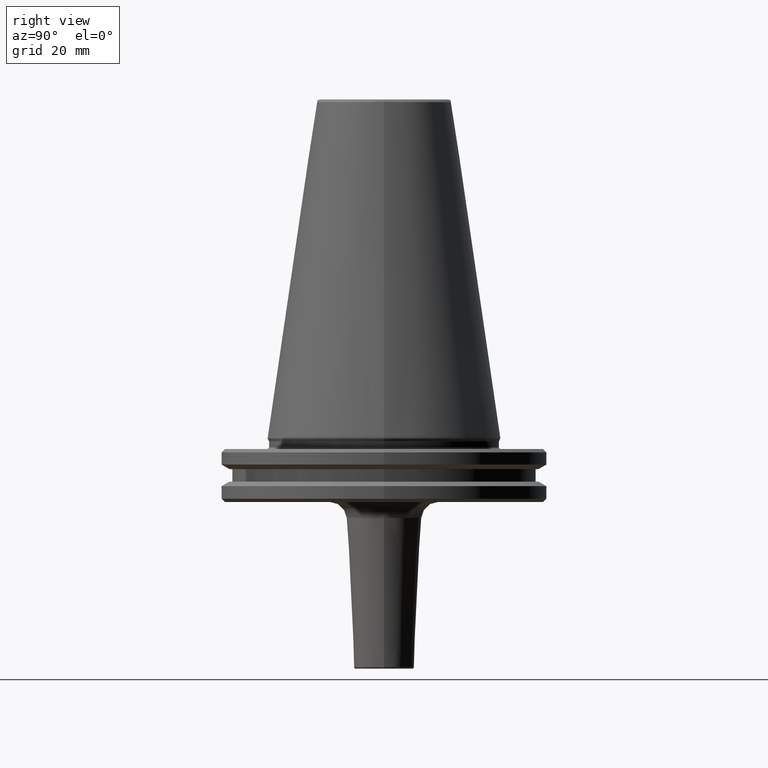
[diagram: clean part render]
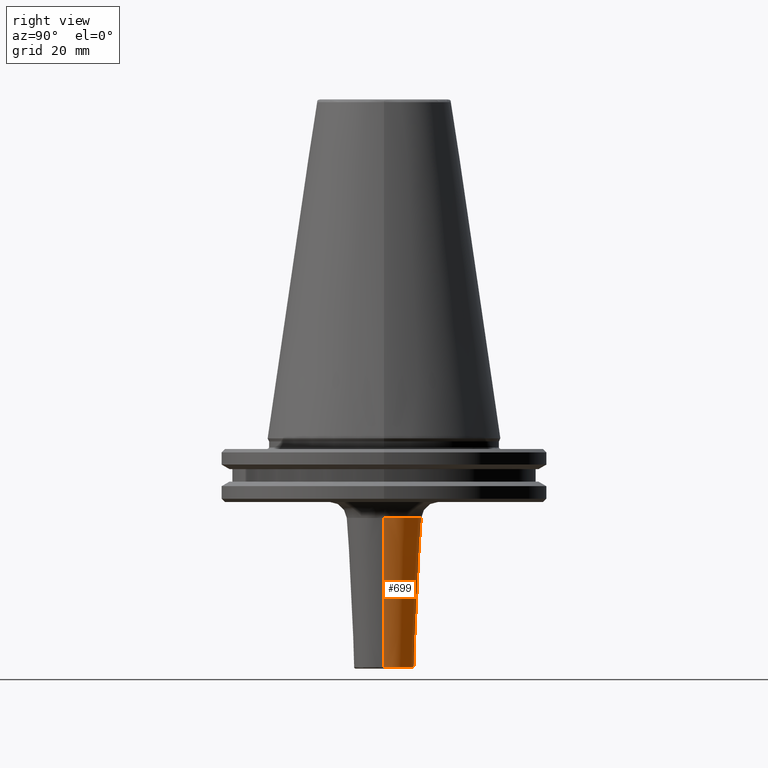
[diagram: same view with one face highlighted and labeled with its STEP entity id]
A machine part, right view. The second image highlights one B-rep face of the part: STEP entity #699.
In plain terms, the highlighted conical surface has half-angle 2.862 deg.
Its self-contained STEP definition (entity closure, byte-faithful):
#2 = CARTESIAN_POINT ( 'NONE',  ( 9.023751559576402000, 0.0000000000000000000, -68.62496880847193400 ) ) ;
#3 = DIRECTION ( 'NONE',  ( 0.0000000000000000000, 0.0000000000000000000, 1.000000000000000000 ) ) ;
#215 = DIRECTION ( 'NONE',  ( 0.04993761694389226700, 0.0000000000000000000, 0.9987523388778446500 ) ) ;
#257 = CARTESIAN_POINT ( 'NONE',  ( 11.26248440423597300, 0.0000000000000000000, -23.85031191528056000 ) ) ;
#266 = CARTESIAN_POINT ( 'NONE',  ( -11.26248440423597300, 1.379256547609456900E-015, -23.85031191528054600 ) ) ;
#357 = EDGE_LOOP ( 'NONE', ( #1462, #1004, #579, #907 ) ) ;
#409 = CARTESIAN_POINT ( 'NONE',  ( 11.26248440423597300, 0.0000000000000000000, -23.85031191528054600 ) ) ;
#442 = DIRECTION ( 'NONE',  ( 1.000000000000000000, 0.0000000000000000000, 0.0000000000000000000 ) ) ;
#450 = CARTESIAN_POINT ( 'NONE',  ( 0.0000000000000000000, 0.0000000000000000000, -23.85031191528056000 ) ) ;
#451 = CARTESIAN_POINT ( 'NONE',  ( -9.023751559576402000, 1.242173696991537300E-015, -68.62496880847193400 ) ) ;
#506 = CONICAL_SURFACE ( 'NONE', #1300, 11.26248440423597300, 0.04995839572194279300 ) ;
#514 = DIRECTION ( 'NONE',  ( 0.0000000000000000000, 0.0000000000000000000, 1.000000000000000000 ) ) ;
#556 = EDGE_CURVE ( 'NONE', #1375, #1291, #1428, .T. ) ;
#579 = ORIENTED_EDGE ( 'NONE', *, *, #996, .T. ) ;
#699 = ADVANCED_FACE ( 'NONE', ( #784 ), #506, .T. ) ;
#726 = VERTEX_POINT ( 'NONE', #409 ) ;
#784 = FACE_OUTER_BOUND ( 'NONE', #357, .T. ) ;
#873 = DIRECTION ( 'NONE',  ( -0.04993761694389226700, 6.115594274738429300E-018, 0.9987523388778446500 ) ) ;
#889 = VECTOR ( 'NONE', #873, 1000.000000000000200 ) ;
#901 = AXIS2_PLACEMENT_3D ( 'NONE', #1233, #3, #1408 ) ;
#907 = ORIENTED_EDGE ( 'NONE', *, *, #1456, .F. ) ;
#927 = CARTESIAN_POINT ( 'NONE',  ( -11.26248440423597300, 1.379256547609456900E-015, -23.85031191528056000 ) ) ;
#996 = EDGE_CURVE ( 'NONE', #1291, #726, #1325, .T. ) ;
#1004 = ORIENTED_EDGE ( 'NONE', *, *, #556, .T. ) ;
#1089 = LINE ( 'NONE', #257, #1175 ) ;
#1175 = VECTOR ( 'NONE', #215, 1000.000000000000200 ) ;
#1184 = VERTEX_POINT ( 'NONE', #2 ) ;
#1195 = CARTESIAN_POINT ( 'NONE',  ( 0.0000000000000000000, 0.0000000000000000000, -23.85031191528054600 ) ) ;
#1210 = DIRECTION ( 'NONE',  ( 0.0000000000000000000, 0.0000000000000000000, -1.000000000000000000 ) ) ;
#1213 = DIRECTION ( 'NONE',  ( -1.000000000000000000, 0.0000000000000000000, 0.0000000000000000000 ) ) ;
#1233 = CARTESIAN_POINT ( 'NONE',  ( 0.0000000000000000000, 0.0000000000000000000, -68.62496880847193400 ) ) ;
#1234 = AXIS2_PLACEMENT_3D ( 'NONE', #1195, #1210, #1213 ) ;
#1291 = VERTEX_POINT ( 'NONE', #266 ) ;
#1300 = AXIS2_PLACEMENT_3D ( 'NONE', #450, #514, #442 ) ;
#1308 = EDGE_CURVE ( 'NONE', #1184, #1375, #1336, .T. ) ;
#1325 = CIRCLE ( 'NONE', #1234, 11.26248440423597000 ) ;
#1336 = CIRCLE ( 'NONE', #901, 9.023751559576402000 ) ;
#1375 = VERTEX_POINT ( 'NONE', #451 ) ;
#1408 = DIRECTION ( 'NONE',  ( 1.000000000000000000, 0.0000000000000000000, 0.0000000000000000000 ) ) ;
#1428 = LINE ( 'NONE', #927, #889 ) ;
#1456 = EDGE_CURVE ( 'NONE', #1184, #726, #1089, .T. ) ;
#1462 = ORIENTED_EDGE ( 'NONE', *, *, #1308, .T. ) ;